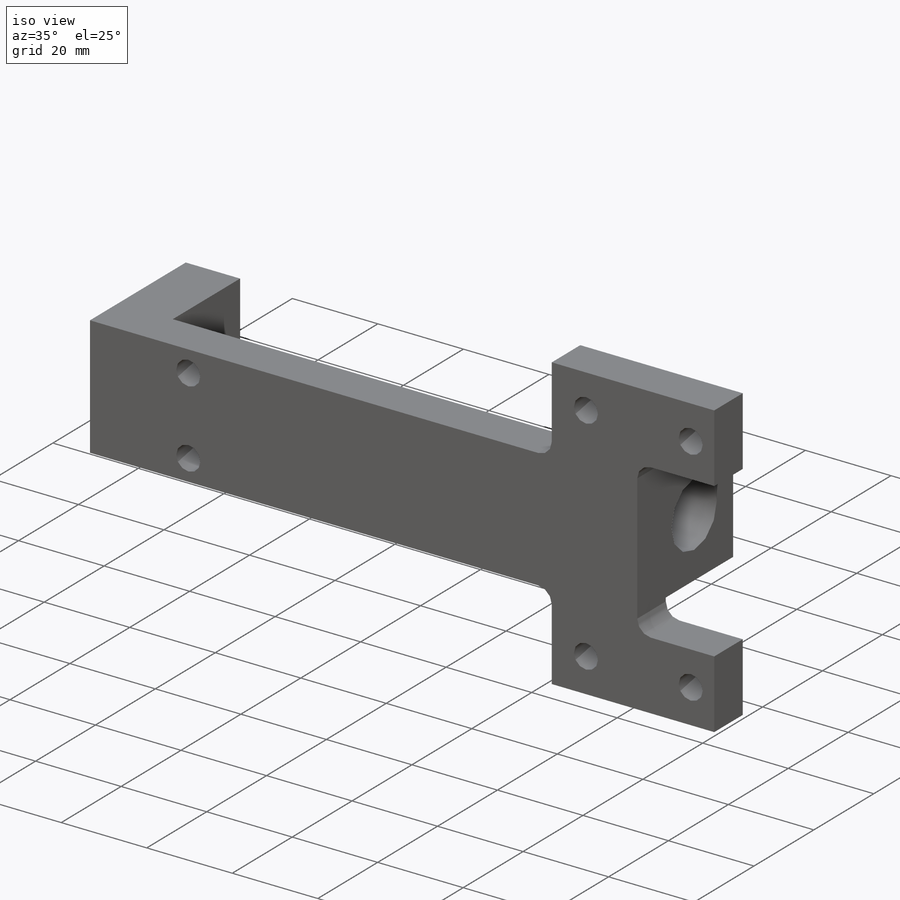
[diagram: iso view]
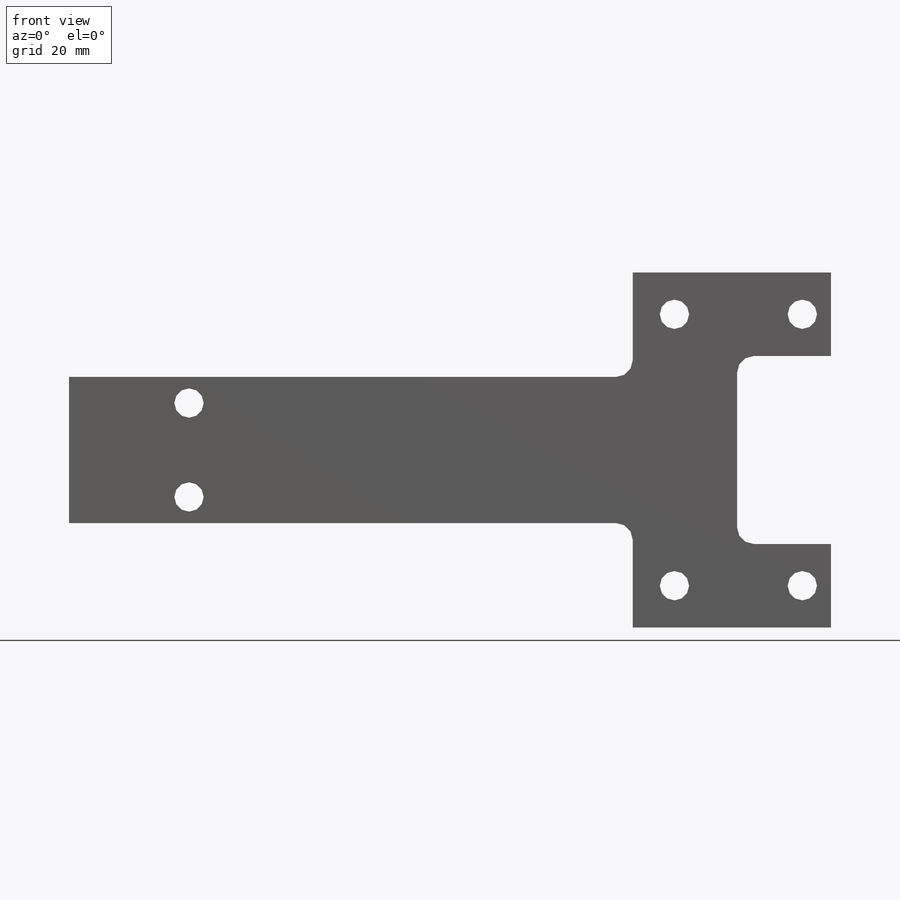
[diagram: front view]
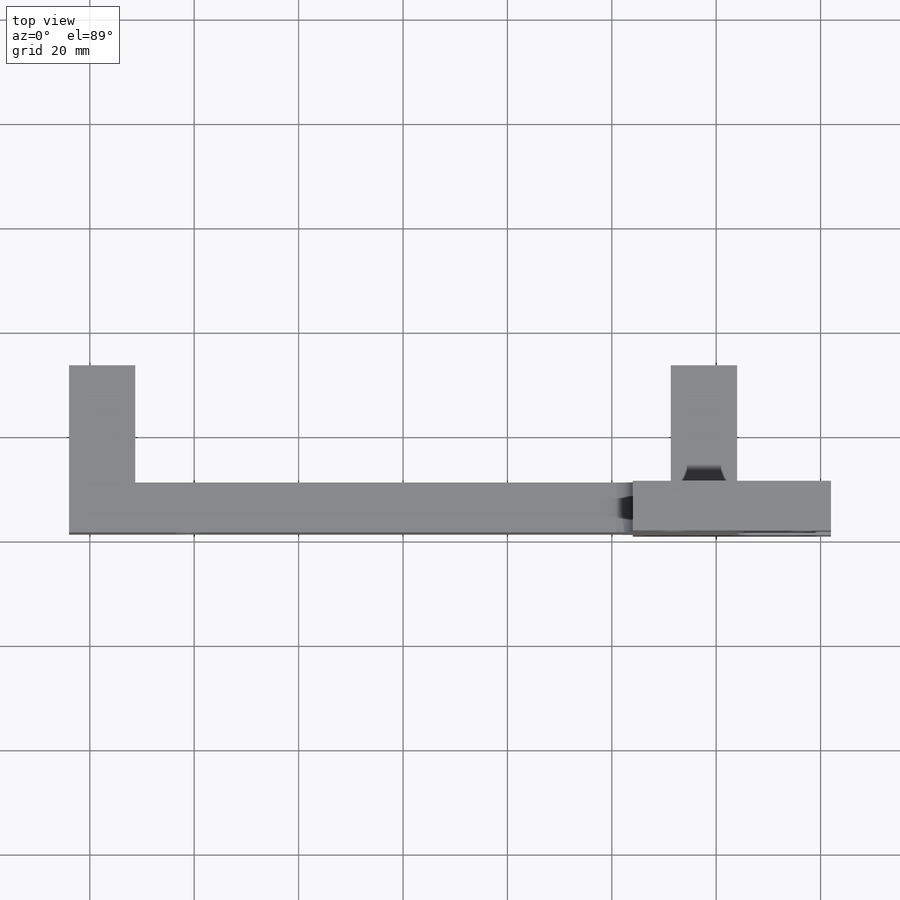
[diagram: top view]
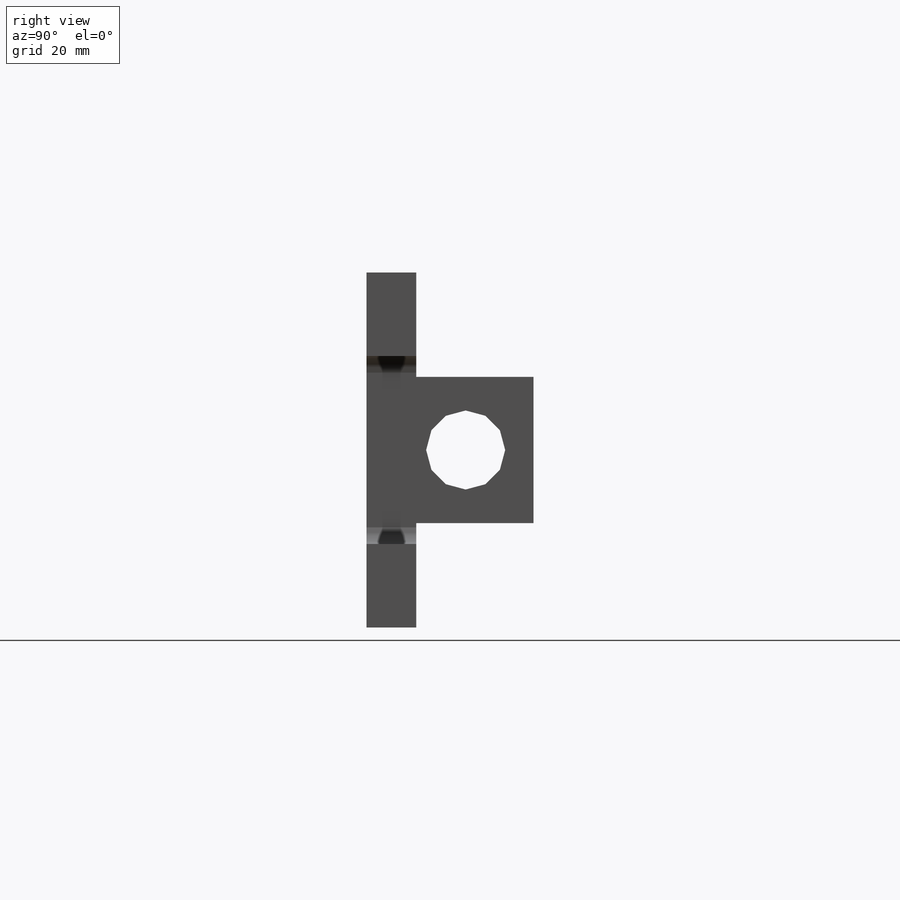
[diagram: right view]
SOLIDWORKS PART (.sldprt)
format: sldprt  version: not decoded by parser v0  size: 270,336 bytes
history: native  units: mm
features: sketch x8, extrude x2, hole x2, material x1, cut_extrude x1, mirror x1, fillet x1 (+11 scaffold rows collapsed)
feature tree (27):
  scaffold x11  (default folders/planes/origin — collapsed)
  material  "6061-T6 (SS)"
  sketch  "Sketch1"  dims[c1.D1=15.1384mm c1.D2=31.75mm c1.D3=9.525mm c1.D4=41.275mm c1.D5=12.7mm c2.D2=12.7mm c2.D3=28.0mm c3.D2=19.0mm c3.D4=13.0mm]
  extrude  "Boss-Extrude1"  Depth=128mm
  sketch  "Sketch5"  dims[D1=12.7mm]
  cut_extrude  "Cut-Extrude1"  Depth=33.147mm
  sketch  "Sketch6"  dims[c1.D1=5.0mm c1.D2=10.0mm c2.D1=82.0mm c2.D2=18.0mm]
  hole  "#10 Clearance Hole1"  Diameter=5.6134mm Depth=25.4mm
  sketch  "Sketch4"  dims[D1=6.35mm]
  sketch  "Sketch3"  dims[hole-wizard template sketch: 47 standard entries collapsed; hole parameters kept: c15.Hole Depth=25.4mm c15.D3=~14.816244mm c15.Drill Angle=118.0deg]
  sketch  "Sketch7"  dims[D1=18.0mm D2=20.0mm D3=4.0mm D4=16.0mm]
  extrude  "Boss-Extrude2"  [1 undecoded]
  hole  "#10 Clearance Hole2"  Diameter=5.6134mm Depth=9.52505mm
  sketch  "Sketch10"  dims[D1=5.5mm]
  sketch  "Sketch9"  dims[hole-wizard template sketch: 59 standard entries collapsed; hole parameters kept: c18.Thru Hole Dia.=5.6134mm c18.Thru Hole Depth=~9.52505mm]
  mirror  "Mirror2"
  fillet  "Fillet2"  Radius=3.175mm
decode coverage: 13 of 15 modeling features carry decoded parameters
note: ~ marks probable driven/reference dimensions
note: 1 parameter value undecoded
note: suppression state not decoded; provenance and decode notes live in map.json
